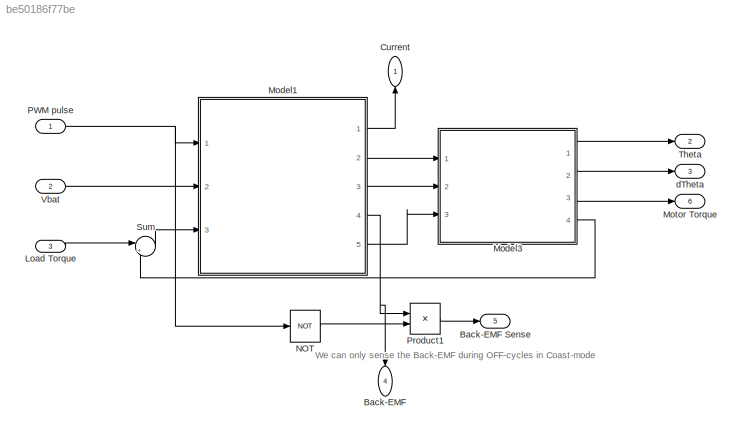
MODEL slx_be50186f77be
KIND model
CONFIG AbsTol = auto
CONFIG EnableMultiTasking = off
CONFIG FixedStep = 1e-5
CONFIG MaxStep = auto
CONFIG MinStep = auto
CONFIG RelTol = 1e-3
CONFIG SampleTimeConstraint = Unconstrained
CONFIG Solver = VariableStepAuto
CONFIG SolverName = VariableStepAuto
CONFIG StartTime = 0.0
CONFIG StopTime = 10.0
BLOCK [Outport] Back-EMF
  IconDisplay = Port number
  Port = 4
  VectorParamsAs1DForOutWhenUnconnected = off
BLOCK [Outport] Back-EMF Sense
  IconDisplay = Port number
  Port = 5
  VectorParamsAs1DForOutWhenUnconnected = off
BLOCK [Outport] Current
  IconDisplay = Port number
  VectorParamsAs1DForOutWhenUnconnected = off
BLOCK [Inport] Load Torque
  IconDisplay = Port number
  OutDataTypeStr = double
  Port = 3
BLOCK [ModelReference] Model1
  ModelNameDialog = DC_Motor_CoastMode
  ModelReferenceVersion = 1.43
  Ports = [3, 5]
BLOCK [ModelReference] Model3
  ModelNameDialog = Gearbox
  ModelReferenceVersion = 1.7
  Ports = [3, 4]
BLOCK [Outport] Motor Torque
  IconDisplay = Port number
  Port = 6
  VectorParamsAs1DForOutWhenUnconnected = off
BLOCK [Logic] NOT
  AllPortsSameDT = off
  IconShape = distinctive
  Operator = NOT
  OutDataTypeStr = boolean
  Ports = [1, 1]
BLOCK [Inport] PWM pulse
  IconDisplay = Port number
  OutDataTypeStr = int8
BLOCK [Product] Product1
  InputSameDT = off
  OutDataTypeStr = Inherit: Inherit via internal rule
  Ports = [2, 1]
  RndMeth = Floor
  SaturateOnIntegerOverflow = off
BLOCK [Sum] Sum
  IconShape = round
  InputSameDT = off
  Inputs = |++
  OutDataTypeStr = Inherit: Inherit via internal rule
  Ports = [2, 1]
  SaturateOnIntegerOverflow = off
BLOCK [Outport] Theta
  IconDisplay = Port number
  Port = 2
  VectorParamsAs1DForOutWhenUnconnected = off
BLOCK [Inport] Vbat
  IconDisplay = Port number
  OutDataTypeStr = double
  Port = 2
BLOCK [Outport] dTheta
  IconDisplay = Port number
  Port = 3
  VectorParamsAs1DForOutWhenUnconnected = off
ANNOTATION (root): We can only sense the Back-EMF during OFF-cycles in Coast-mode
LINE Load Torque:1 -> Sum:1
LINE Model1:1 -> Current:1
LINE Model1:2 -> Model3:1
LINE Model1:3 -> Model3:2
NET Model1:4 -> Back-EMF:1, Product1:1
LINE Model1:5 -> Model3:3
LINE Model3:1 -> Theta:1
LINE Model3:2 -> dTheta:1
LINE Model3:3 -> Motor Torque:1
LINE Model3:4 -> Sum:2
LINE NOT:1 -> Product1:2
NET PWM pulse:1 -> Model1:1, NOT:1
LINE Product1:1 -> Back-EMF Sense:1
LINE Sum:1 -> Model1:3
LINE Vbat:1 -> Model1:2
note: NET lines group one-source signal fan-out (src -> all destinations, sorted); 1:1 wires keep LINE
